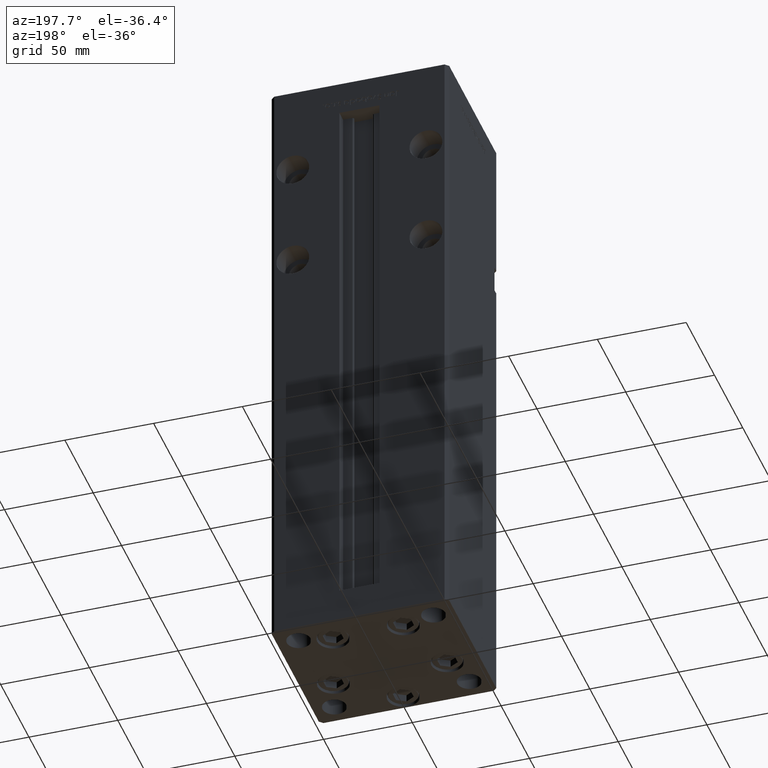
[diagram: clean part render]
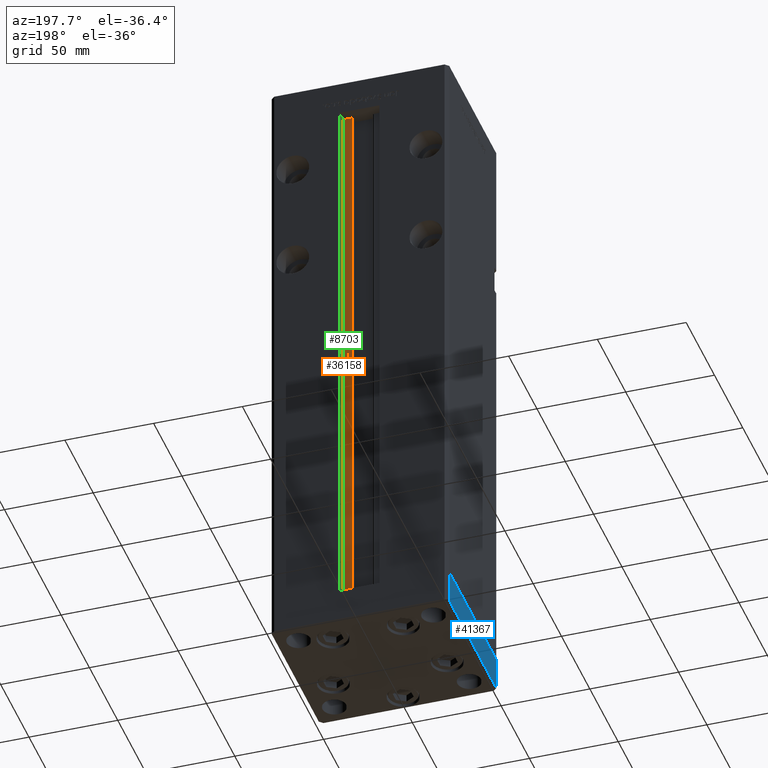
[diagram: same view with three faces highlighted in distinct colors, each labeled with its STEP entity id]
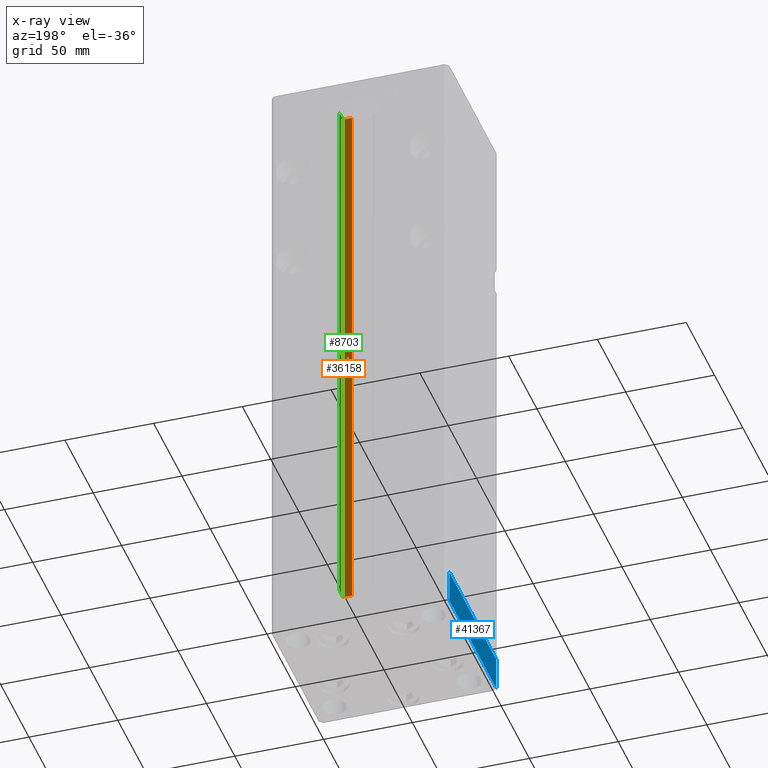
[diagram: x-ray of the same camera — body ghosted, the three highlighted faces saturated]
A machine part, auxiliary view with three faces highlighted in distinct colors.
The next image is the same camera in x-ray (body ghosted, the three faces saturated) — at least one of them is partly hidden behind the body in this view.
Their STEP definitions:

[orange] entity #36158 — the highlighted planar face has unit normal (0, -1, 0).
#314 = AXIS2_PLACEMENT_3D ( 'NONE', #34602, #38643, #18200 ) ;
#5480 = EDGE_CURVE ( 'NONE', #26239, #41196, #15833, .T. ) ;
#8027 = CARTESIAN_POINT ( 'NONE',  ( 6.183333333333996151, 37.00000000000000000, 0.000000000000000000 ) ) ;
#8314 = PLANE ( 'NONE',  #314 ) ;
#8981 = CARTESIAN_POINT ( 'NONE',  ( 6.183333333333996151, 37.00000000000000000, 0.000000000000000000 ) ) ;
#9061 = CARTESIAN_POINT ( 'NONE',  ( 11.24999999999999645, 37.00000000000000000, 0.000000000000000000 ) ) ;
#9517 = LINE ( 'NONE', #8981, #10028 ) ;
#9930 = VERTEX_POINT ( 'NONE', #9061 ) ;
#9955 = VECTOR ( 'NONE', #24461, 1000.000000000000000 ) ;
#10028 = VECTOR ( 'NONE', #25951, 1000.000000000000000 ) ;
#13333 = CARTESIAN_POINT ( 'NONE',  ( 6.183333333333996151, 37.00000000000000000, 318.5000000000000000 ) ) ;
#15718 = ORIENTED_EDGE ( 'NONE', *, *, #20828, .T. ) ;
#15833 = LINE ( 'NONE', #32780, #19099 ) ;
#16092 = VERTEX_POINT ( 'NONE', #24152 ) ;
#16696 = EDGE_LOOP ( 'NONE', ( #41532, #47193, #15718, #35870 ) ) ;
#18200 = DIRECTION ( 'NONE',  ( 0.000000000000000000, -0.000000000000000000, -1.000000000000000000 ) ) ;
#19099 = VECTOR ( 'NONE', #27966, 1000.000000000000000 ) ;
#19885 = LINE ( 'NONE', #8027, #9955 ) ;
#20828 = EDGE_CURVE ( 'NONE', #16092, #41196, #19885, .T. ) ;
#22456 = EDGE_CURVE ( 'NONE', #16092, #9930, #9517, .T. ) ;
#24152 = CARTESIAN_POINT ( 'NONE',  ( 6.183333333333996151, 37.00000000000000000, 0.000000000000000000 ) ) ;
#24232 = CARTESIAN_POINT ( 'NONE',  ( 11.24999999999999645, 37.00000000000000000, 318.5000000000000000 ) ) ;
#24461 = DIRECTION ( 'NONE',  ( -0.000000000000000000, -0.000000000000000000, 1.000000000000000000 ) ) ;
#25951 = DIRECTION ( 'NONE',  ( 1.000000000000000000, 0.000000000000000000, 0.000000000000000000 ) ) ;
#26239 = VERTEX_POINT ( 'NONE', #24232 ) ;
#27966 = DIRECTION ( 'NONE',  ( -1.000000000000000000, 0.000000000000000000, 0.000000000000000000 ) ) ;
#32780 = CARTESIAN_POINT ( 'NONE',  ( 0.000000000000000000, 37.00000000000000000, 318.5000000000000000 ) ) ;
#32805 = FACE_OUTER_BOUND ( 'NONE', #16696, .T. ) ;
#33900 = VECTOR ( 'NONE', #43370, 1000.000000000000000 ) ;
#34602 = CARTESIAN_POINT ( 'NONE',  ( 6.183333333333996151, 37.00000000000000000, 0.000000000000000000 ) ) ;
#35870 = ORIENTED_EDGE ( 'NONE', *, *, #5480, .F. ) ;
#36158 = ADVANCED_FACE ( 'NONE', ( #32805 ), #8314, .F. ) ;
#38643 = DIRECTION ( 'NONE',  ( 0.000000000000000000, -1.000000000000000000, 0.000000000000000000 ) ) ;
#41196 = VERTEX_POINT ( 'NONE', #13333 ) ;
#41532 = ORIENTED_EDGE ( 'NONE', *, *, #42046, .F. ) ;
#42046 = EDGE_CURVE ( 'NONE', #9930, #26239, #43878, .T. ) ;
#43370 = DIRECTION ( 'NONE',  ( -0.000000000000000000, -0.000000000000000000, 1.000000000000000000 ) ) ;
#43878 = LINE ( 'NONE', #47139, #33900 ) ;
#47139 = CARTESIAN_POINT ( 'NONE',  ( 11.24999999999999645, 37.00000000000000000, 0.000000000000000000 ) ) ;
#47193 = ORIENTED_EDGE ( 'NONE', *, *, #22456, .F. ) ;

[blue] entity #41367 — the highlighted planar face has unit normal (-1, -0, 0).
#461 = AXIS2_PLACEMENT_3D ( 'NONE', #24980, #49954, #37616 ) ;
#681 = CARTESIAN_POINT ( 'NONE',  ( 50.00000000000000000, -41.49999999999999289, -19.00000000000000000 ) ) ;
#3808 = VERTEX_POINT ( 'NONE', #18294 ) ;
#5911 = CARTESIAN_POINT ( 'NONE',  ( 50.00000000000000000, -41.49999999999999289, 0.000000000000000000 ) ) ;
#6050 = CARTESIAN_POINT ( 'NONE',  ( 49.99999999999992184, 41.49999999999998579, -19.00000000000000000 ) ) ;
#8457 = DIRECTION ( 'NONE',  ( 0.000000000000000000, 0.000000000000000000, 1.000000000000000000 ) ) ;
#11454 = CARTESIAN_POINT ( 'NONE',  ( 49.99999999999992184, 41.49999999999998579, 0.000000000000000000 ) ) ;
#12604 = PLANE ( 'NONE',  #461 ) ;
#13715 = DIRECTION ( 'NONE',  ( 0.000000000000000000, 0.000000000000000000, 1.000000000000000000 ) ) ;
#14227 = VECTOR ( 'NONE', #20892, 1000.000000000000000 ) ;
#14550 = EDGE_CURVE ( 'NONE', #24676, #41754, #49905, .T. ) ;
#16395 = CARTESIAN_POINT ( 'NONE',  ( 50.00000000000000000, -41.49999999999999289, -19.00000000000000000 ) ) ;
#18294 = CARTESIAN_POINT ( 'NONE',  ( 50.00000000000000000, -41.49999999999999289, 0.000000000000000000 ) ) ;
#20892 = DIRECTION ( 'NONE',  ( -1.003213576468515193E-15, 1.000000000000000000, 0.000000000000000000 ) ) ;
#21115 = CARTESIAN_POINT ( 'NONE',  ( 49.99999999999992184, 41.49999999999998579, -19.00000000000000000 ) ) ;
#21521 = ORIENTED_EDGE ( 'NONE', *, *, #30495, .T. ) ;
#24676 = VERTEX_POINT ( 'NONE', #16395 ) ;
#24980 = CARTESIAN_POINT ( 'NONE',  ( 50.00000000000000000, -41.49999999999999289, -19.00000000000000000 ) ) ;
#25569 = LINE ( 'NONE', #29600, #29700 ) ;
#25948 = VECTOR ( 'NONE', #50017, 1000.000000000000000 ) ;
#27259 = EDGE_CURVE ( 'NONE', #3808, #27699, #42772, .T. ) ;
#27699 = VERTEX_POINT ( 'NONE', #11454 ) ;
#29557 = FACE_OUTER_BOUND ( 'NONE', #45029, .T. ) ;
#29600 = CARTESIAN_POINT ( 'NONE',  ( 50.00000000000000000, -41.49999999999999289, -19.00000000000000000 ) ) ;
#29700 = VECTOR ( 'NONE', #13715, 1000.000000000000000 ) ;
#30495 = EDGE_CURVE ( 'NONE', #41754, #27699, #49860, .T. ) ;
#35419 = VECTOR ( 'NONE', #8457, 1000.000000000000000 ) ;
#36238 = ORIENTED_EDGE ( 'NONE', *, *, #27259, .F. ) ;
#37616 = DIRECTION ( 'NONE',  ( -1.003213576468515193E-15, 1.000000000000000000, 0.000000000000000000 ) ) ;
#39558 = ORIENTED_EDGE ( 'NONE', *, *, #44633, .F. ) ;
#41367 = ADVANCED_FACE ( 'NONE', ( #29557 ), #12604, .T. ) ;
#41754 = VERTEX_POINT ( 'NONE', #6050 ) ;
#42154 = ORIENTED_EDGE ( 'NONE', *, *, #14550, .T. ) ;
#42772 = LINE ( 'NONE', #5911, #25948 ) ;
#44633 = EDGE_CURVE ( 'NONE', #24676, #3808, #25569, .T. ) ;
#45029 = EDGE_LOOP ( 'NONE', ( #36238, #39558, #42154, #21521 ) ) ;
#49860 = LINE ( 'NONE', #21115, #35419 ) ;
#49905 = LINE ( 'NONE', #681, #14227 ) ;
#49954 = DIRECTION ( 'NONE',  ( 1.000000000000000000, 1.003213576468515193E-15, -0.000000000000000000 ) ) ;
#50017 = DIRECTION ( 'NONE',  ( -1.003213576468515193E-15, 1.000000000000000000, 0.000000000000000000 ) ) ;

[green] entity #8703 — the highlighted planar face has unit normal (1, 0, 0).
#1517 = LINE ( 'NONE', #37846, #39811 ) ;
#2567 = PLANE ( 'NONE',  #6298 ) ;
#6298 = AXIS2_PLACEMENT_3D ( 'NONE', #10141, #26573, #42948 ) ;
#8703 = ADVANCED_FACE ( 'NONE', ( #39439 ), #2567, .F. ) ;
#9061 = CARTESIAN_POINT ( 'NONE',  ( 11.24999999999999645, 37.00000000000000000, 0.000000000000000000 ) ) ;
#9930 = VERTEX_POINT ( 'NONE', #9061 ) ;
#10049 = EDGE_CURVE ( 'NONE', #9930, #36451, #1517, .T. ) ;
#10141 = CARTESIAN_POINT ( 'NONE',  ( 11.24999999999999645, 37.00000000000000000, 0.000000000000000000 ) ) ;
#10514 = CARTESIAN_POINT ( 'NONE',  ( 11.24999999999999645, 0.000000000000000000, 318.5000000000000000 ) ) ;
#14471 = ORIENTED_EDGE ( 'NONE', *, *, #10049, .F. ) ;
#15458 = CARTESIAN_POINT ( 'NONE',  ( 11.24999999999999645, 43.50000000000000000, 0.000000000000000000 ) ) ;
#18356 = ORIENTED_EDGE ( 'NONE', *, *, #33193, .F. ) ;
#24232 = CARTESIAN_POINT ( 'NONE',  ( 11.24999999999999645, 37.00000000000000000, 318.5000000000000000 ) ) ;
#25232 = EDGE_LOOP ( 'NONE', ( #29384, #14471, #38725, #18356 ) ) ;
#26239 = VERTEX_POINT ( 'NONE', #24232 ) ;
#26573 = DIRECTION ( 'NONE',  ( 1.000000000000000000, -0.000000000000000000, 0.000000000000000000 ) ) ;
#26613 = VERTEX_POINT ( 'NONE', #43226 ) ;
#29384 = ORIENTED_EDGE ( 'NONE', *, *, #39722, .F. ) ;
#33193 = EDGE_CURVE ( 'NONE', #26613, #26239, #47357, .T. ) ;
#33900 = VECTOR ( 'NONE', #43370, 1000.000000000000000 ) ;
#36451 = VERTEX_POINT ( 'NONE', #15458 ) ;
#36874 = LINE ( 'NONE', #44921, #37404 ) ;
#37172 = VECTOR ( 'NONE', #51648, 1000.000000000000000 ) ;
#37404 = VECTOR ( 'NONE', #49744, 1000.000000000000000 ) ;
#37846 = CARTESIAN_POINT ( 'NONE',  ( 11.24999999999999645, 37.00000000000000000, 0.000000000000000000 ) ) ;
#38725 = ORIENTED_EDGE ( 'NONE', *, *, #42046, .T. ) ;
#39439 = FACE_OUTER_BOUND ( 'NONE', #25232, .T. ) ;
#39722 = EDGE_CURVE ( 'NONE', #36451, #26613, #36874, .T. ) ;
#39811 = VECTOR ( 'NONE', #42405, 1000.000000000000000 ) ;
#42046 = EDGE_CURVE ( 'NONE', #9930, #26239, #43878, .T. ) ;
#42405 = DIRECTION ( 'NONE',  ( 0.000000000000000000, 1.000000000000000000, 0.000000000000000000 ) ) ;
#42948 = DIRECTION ( 'NONE',  ( 0.000000000000000000, 0.000000000000000000, -1.000000000000000000 ) ) ;
#43226 = CARTESIAN_POINT ( 'NONE',  ( 11.24999999999998934, 43.50000000000000000, 318.5000000000000000 ) ) ;
#43370 = DIRECTION ( 'NONE',  ( -0.000000000000000000, -0.000000000000000000, 1.000000000000000000 ) ) ;
#43878 = LINE ( 'NONE', #47139, #33900 ) ;
#44921 = CARTESIAN_POINT ( 'NONE',  ( 11.24999999999999645, 43.50000000000000000, 0.000000000000000000 ) ) ;
#47139 = CARTESIAN_POINT ( 'NONE',  ( 11.24999999999999645, 37.00000000000000000, 0.000000000000000000 ) ) ;
#47357 = LINE ( 'NONE', #10514, #37172 ) ;
#49744 = DIRECTION ( 'NONE',  ( -0.000000000000000000, -0.000000000000000000, 1.000000000000000000 ) ) ;
#51648 = DIRECTION ( 'NONE',  ( -0.000000000000000000, -1.000000000000000000, 0.000000000000000000 ) ) ;